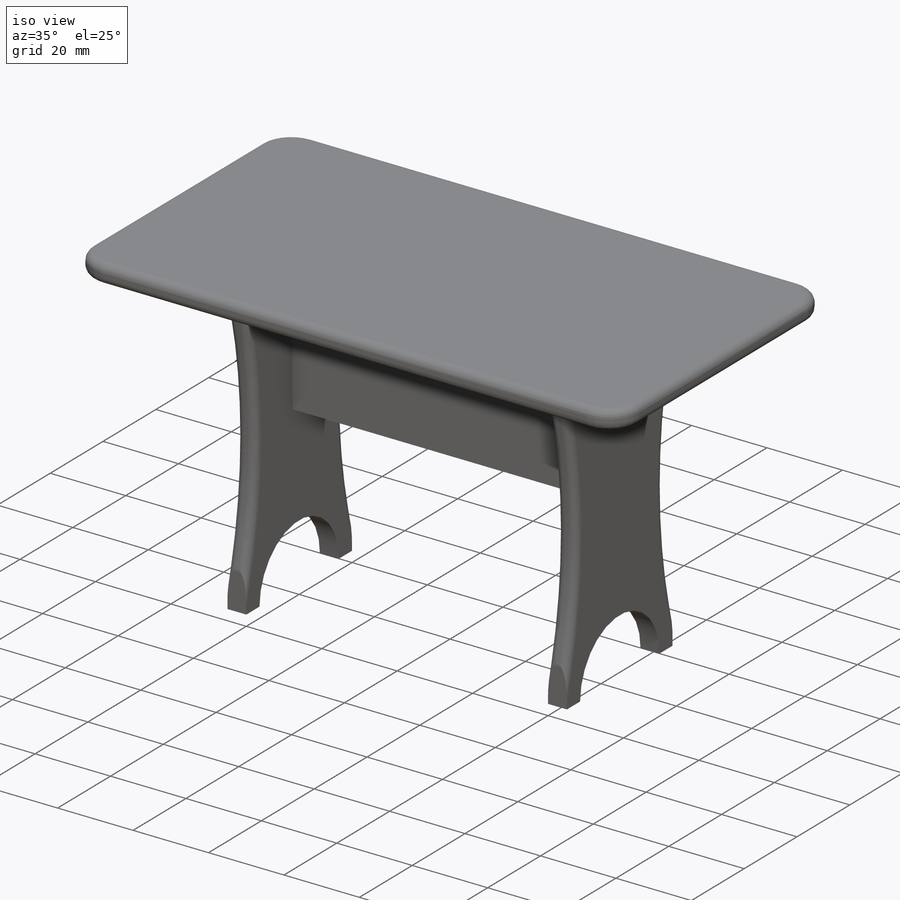
[diagram: iso view]
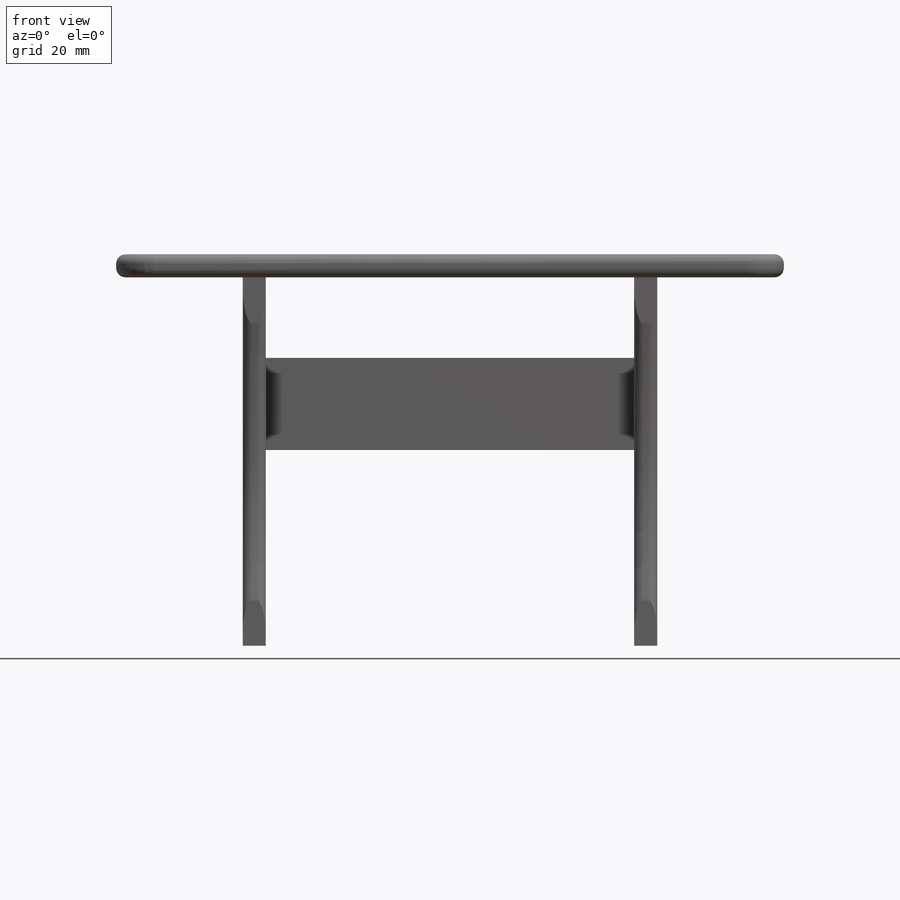
[diagram: front view]
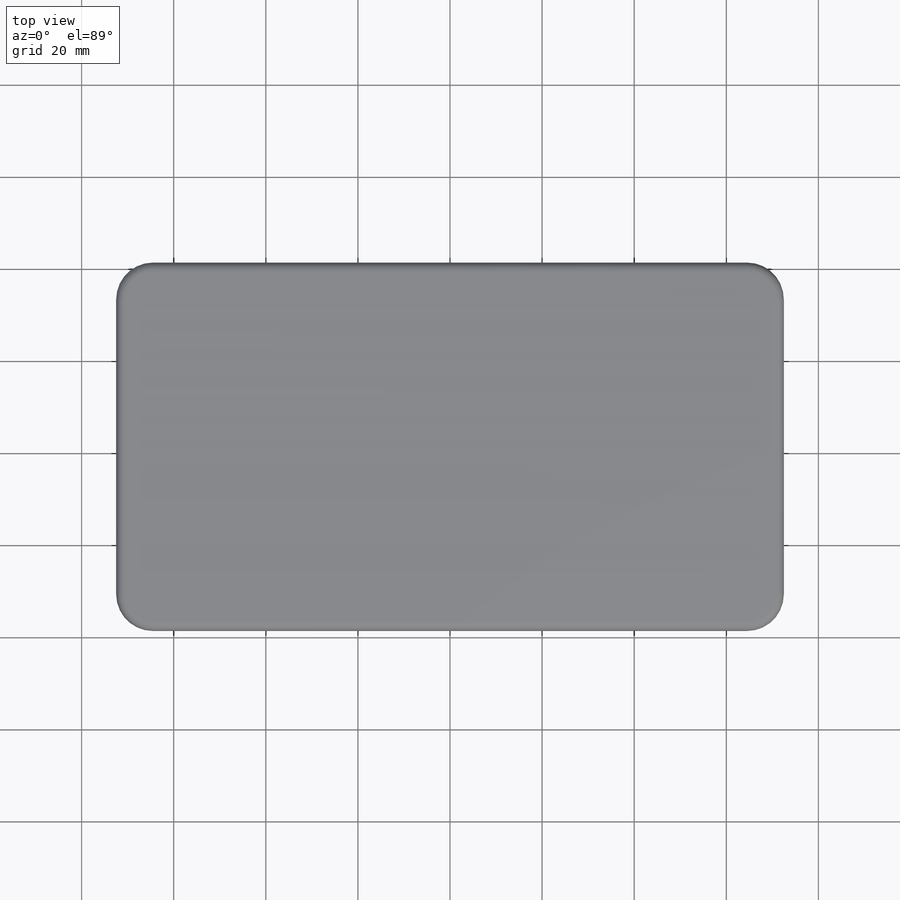
[diagram: top view]
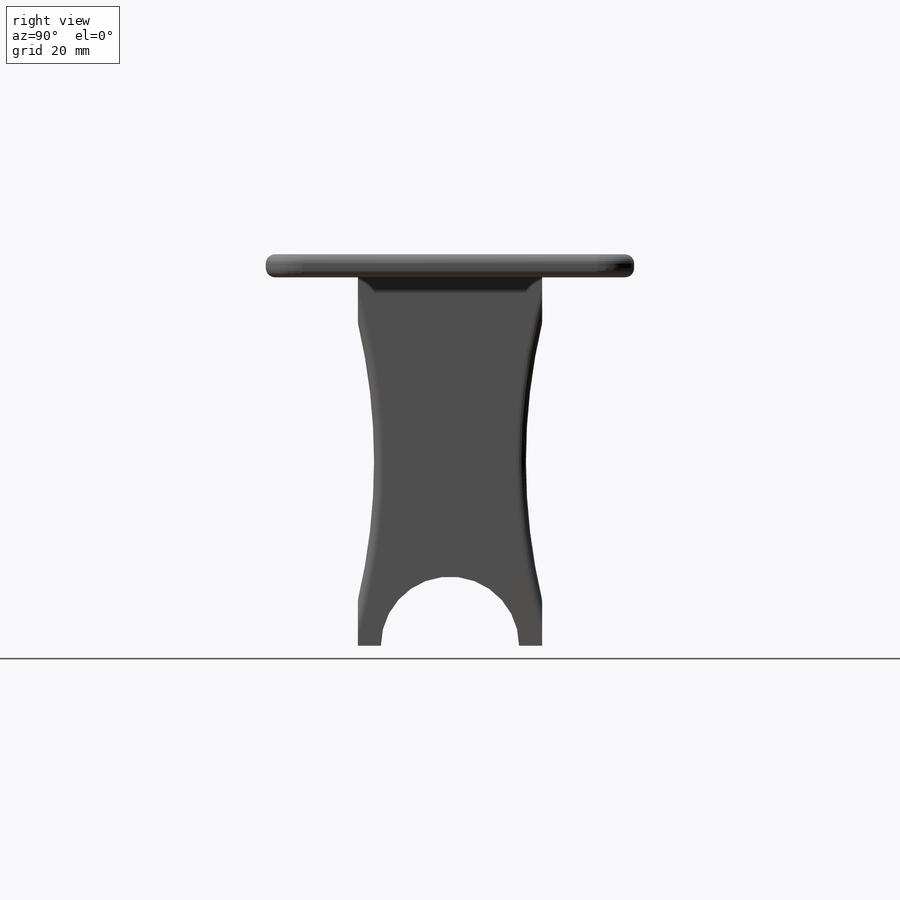
[diagram: right view]
SOLIDWORKS PART (.sldprt)
format: sldprt  version: not decoded by parser v0  size: 672,768 bytes
history: native  units: mm
features: sketch x7, mirror x6, plane x5, fillet x5, extrude x3, cut_extrude x2, material x1 (+8 scaffold rows collapsed)
feature tree (37):
  scaffold x8  (default folders/planes/origin — collapsed)
  material  "Материал <не указан>"
  plane  "Спереди"
  plane  "Сверху"
  plane  "Справа"
  sketch  "Эскиз1"  dims[D1=8.0mm D2=145.0mm D3=80.0mm]
  extrude  "Бобышка-Вытянуть1"  Depth=5mm
  plane  "Плоскость1"  Offset=42.5mm
  sketch  "Эскиз2"  dims[D1=80.0mm D2=40.0mm]
  extrude  "Бобышка-Вытянуть2"  Depth=5mm
  mirror  "Зеркальное отражение5"
  plane  "Плоскость2"  Offset=0mm
  sketch  "Эскиз3"  dims[D1=30.0mm D2=20.0mm]
  extrude  "Бобышка-Вытянуть3"  Depth=5mm
  sketch  "Эскиз4"  dims[c1.D1=20.0mm c1.D3=100.0mm c1.D4=100.0mm c2.D1=120.0mm c2.D3=~123.693169mm c3.D1=~123.693169mm c3.D2=130.0mm c3.D4=130.0mm c4.D1=40.0mm c4.D2=10.0mm c4.D3=30.0mm c5.D1=10.0mm c5.D4=~115.39392mm c5.D2=136.1895mm c6.D1=140.0mm c6.D2=60.0mm c6.D3=140.0mm c7.D1=40.0mm c7.D3=60.0mm c8.D1=10.0mm c8.D2=60.0mm c8.D3=40.0mm c8.D4=~146.491106mm]
  cut_extrude  "Вырез-Вытянуть2"  Depth=5mm
  mirror  "Зеркальное отражение16"
  sketch  "Эскиз5"  dims[D1=15.0mm D2=5.0mm]
  cut_extrude  "Вырез-Вытянуть4"  Depth=5mm
  mirror  "Зеркальное отражение20"
  mirror  "Зеркальное отражение21"
  mirror  "Зеркальное отражение22"
  mirror  "Зеркальное отражение24"
  sketch  "Эскиз6"  dims[c1.D3=8.0mm c1.D4=8.0mm c1.D1=10.0mm c1.D2=10.0mm c2.D3=10.0mm c2.D8=10.0mm c2.D1=15.0mm c2.D2=30.0mm c3.D3=35.0mm c3.D4=30.0mm c3.D5=15.0mm c3.D6=15.0mm c3.D7=25.0mm c3.D8=~12.211519mm]
  sketch  "Эскиз7"  dims[D2=8.0mm D3=8.0mm D4=8.0mm D1=30.0mm D5=50.0mm D6=25.0mm]
  fillet  "Скругление1"  Radius=2mm
  fillet  "Скругление2"  Radius=2mm
  fillet  "Скругление3"  Radius=2mm
  fillet  "Скругление4"  Radius=2mm
  fillet  "Скругление5"  Radius=2mm
decode coverage: 17 of 23 modeling features carry decoded parameters
note: ~ marks probable driven/reference dimensions
note: suppression state not decoded; provenance and decode notes live in map.json
